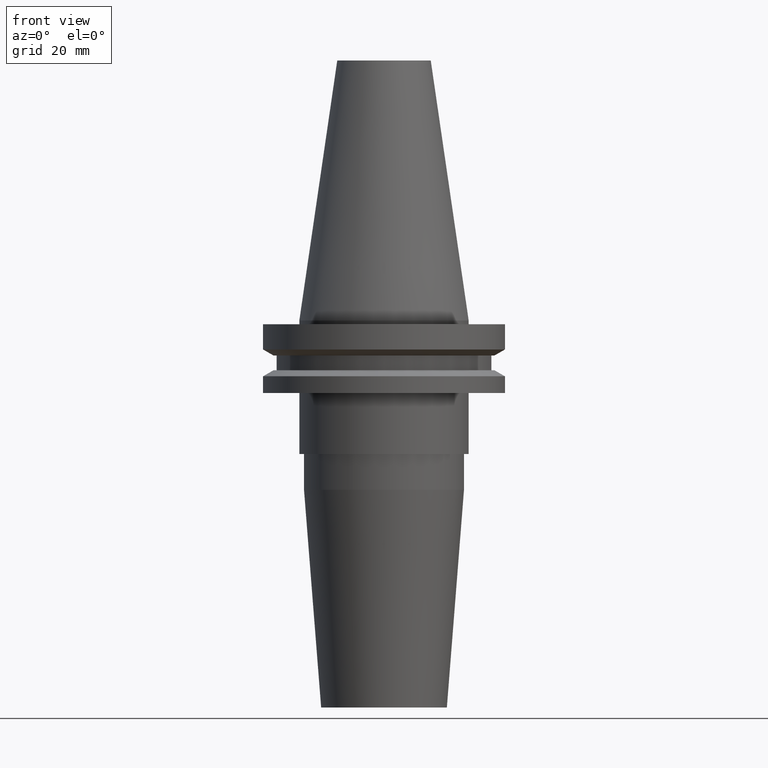
[diagram: clean part render]
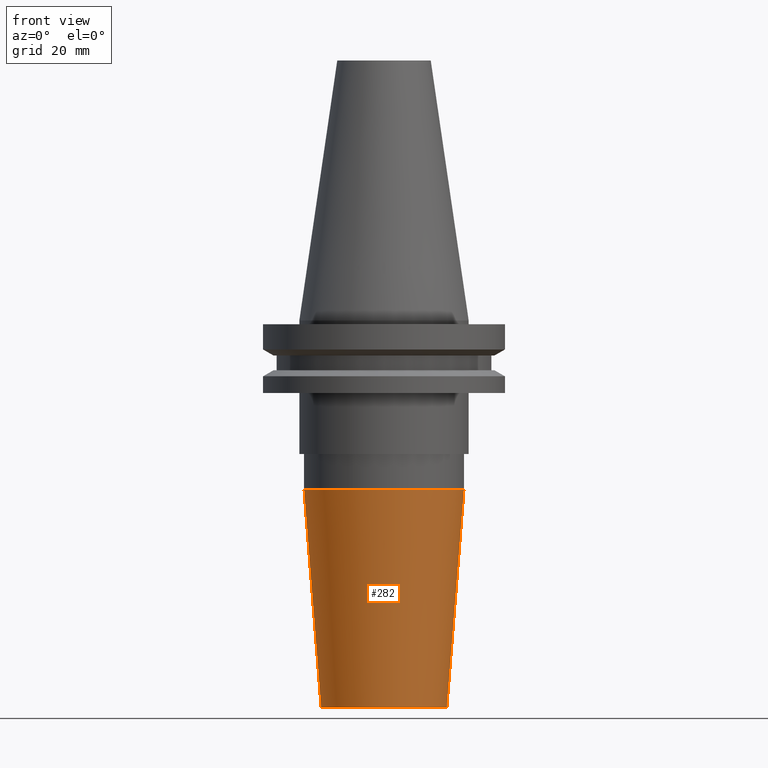
[diagram: same view with one face highlighted and labeled with its STEP entity id]
A machine part, front view. The second image highlights one B-rep face of the part: STEP entity #282.
In plain terms, the highlighted conical surface has half-angle 4.5 deg.
Its self-contained STEP definition (entity closure, byte-faithful):
#2 = VERTEX_POINT ( 'NONE', #451 ) ;
#12 = DIRECTION ( 'NONE',  ( -0.000000000000000000, -0.000000000000000000, 1.000000000000000000 ) ) ;
#19 = EDGE_CURVE ( 'NONE', #2, #391, #101, .T. ) ;
#29 = CARTESIAN_POINT ( 'NONE',  ( 16.50000000000000000, 0.000000000000000000, -101.5999999999999943 ) ) ;
#76 = CARTESIAN_POINT ( 'NONE',  ( 0.000000000000000000, 0.000000000000000000, -44.42207868720773689 ) ) ;
#78 = EDGE_LOOP ( 'NONE', ( #741, #557, #690, #247 ) ) ;
#80 = DIRECTION ( 'NONE',  ( -0.07845909572783665853, 9.608468044709093523E-18, 0.9969173337331286300 ) ) ;
#93 = CARTESIAN_POINT ( 'NONE',  ( 0.000000000000000000, 0.000000000000000000, -101.5999999999999943 ) ) ;
#101 = CIRCLE ( 'NONE', #202, 16.50000000000000000 ) ;
#107 = LINE ( 'NONE', #364, #740 ) ;
#110 = CARTESIAN_POINT ( 'NONE',  ( 0.000000000000000000, 0.000000000000000000, -101.5999999999999943 ) ) ;
#154 = DIRECTION ( 'NONE',  ( 1.000000000000000000, 0.000000000000000000, 0.000000000000000000 ) ) ;
#168 = DIRECTION ( 'NONE',  ( -0.000000000000000000, -0.000000000000000000, 1.000000000000000000 ) ) ;
#171 = EDGE_CURVE ( 'NONE', #410, #750, #660, .T. ) ;
#202 = AXIS2_PLACEMENT_3D ( 'NONE', #110, #515, #832 ) ;
#212 = CARTESIAN_POINT ( 'NONE',  ( 21.00000000000000000, 0.000000000000000000, -44.42207868720773689 ) ) ;
#247 = ORIENTED_EDGE ( 'NONE', *, *, #171, .F. ) ;
#252 = VECTOR ( 'NONE', #80, 1000.000000000000000 ) ;
#271 = CARTESIAN_POINT ( 'NONE',  ( -16.50000000000000000, 2.020667218593133100E-15, -101.5999999999999943 ) ) ;
#282 = ADVANCED_FACE ( 'NONE', ( #549 ), #536, .T. ) ;
#293 = AXIS2_PLACEMENT_3D ( 'NONE', #76, #12, #154 ) ;
#306 = DIRECTION ( 'NONE',  ( 1.000000000000000000, 0.000000000000000000, 0.000000000000000000 ) ) ;
#364 = CARTESIAN_POINT ( 'NONE',  ( 16.50000000000000000, 0.000000000000000000, -101.5999999999999943 ) ) ;
#391 = VERTEX_POINT ( 'NONE', #29 ) ;
#410 = VERTEX_POINT ( 'NONE', #624 ) ;
#423 = EDGE_CURVE ( 'NONE', #391, #750, #107, .T. ) ;
#451 = CARTESIAN_POINT ( 'NONE',  ( -16.50000000000000000, 2.296212748401287578E-15, -101.5999999999999943 ) ) ;
#515 = DIRECTION ( 'NONE',  ( -0.000000000000000000, -0.000000000000000000, 1.000000000000000000 ) ) ;
#536 = CONICAL_SURFACE ( 'NONE', #710, 16.50000000000000000, 0.07853981633973651511 ) ;
#549 = FACE_OUTER_BOUND ( 'NONE', #78, .T. ) ;
#557 = ORIENTED_EDGE ( 'NONE', *, *, #19, .T. ) ;
#624 = CARTESIAN_POINT ( 'NONE',  ( -21.00000000000000000, 2.571758278209441661E-15, -44.42207868720773689 ) ) ;
#629 = DIRECTION ( 'NONE',  ( 0.07845909572783665853, 0.000000000000000000, 0.9969173337331286300 ) ) ;
#660 = CIRCLE ( 'NONE', #293, 21.00000000000000000 ) ;
#690 = ORIENTED_EDGE ( 'NONE', *, *, #423, .T. ) ;
#695 = EDGE_CURVE ( 'NONE', #2, #410, #799, .T. ) ;
#710 = AXIS2_PLACEMENT_3D ( 'NONE', #93, #168, #306 ) ;
#740 = VECTOR ( 'NONE', #629, 1000.000000000000000 ) ;
#741 = ORIENTED_EDGE ( 'NONE', *, *, #695, .F. ) ;
#750 = VERTEX_POINT ( 'NONE', #212 ) ;
#799 = LINE ( 'NONE', #271, #252 ) ;
#832 = DIRECTION ( 'NONE',  ( 1.000000000000000000, 0.000000000000000000, 0.000000000000000000 ) ) ;